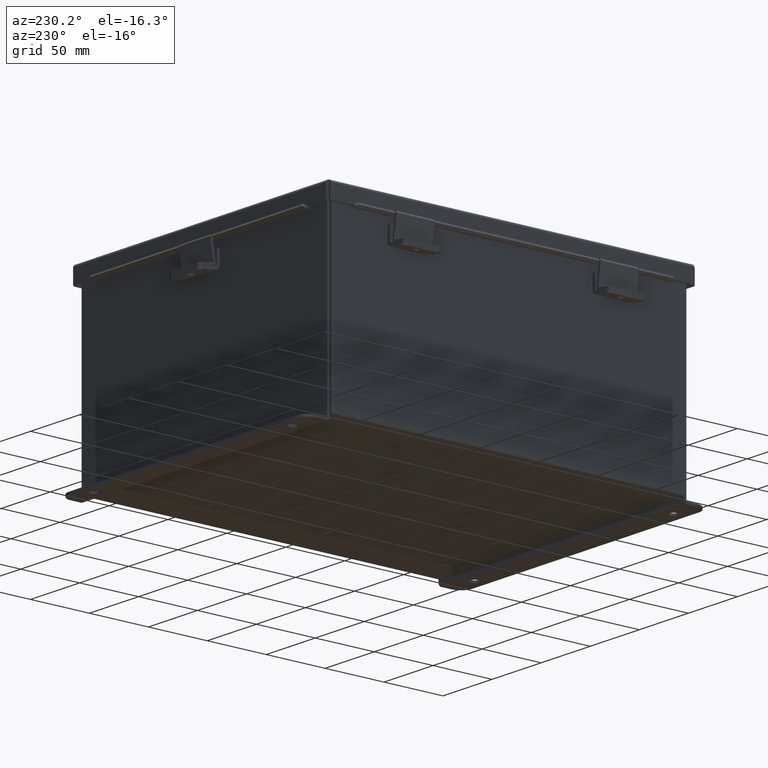
[diagram: clean part render]
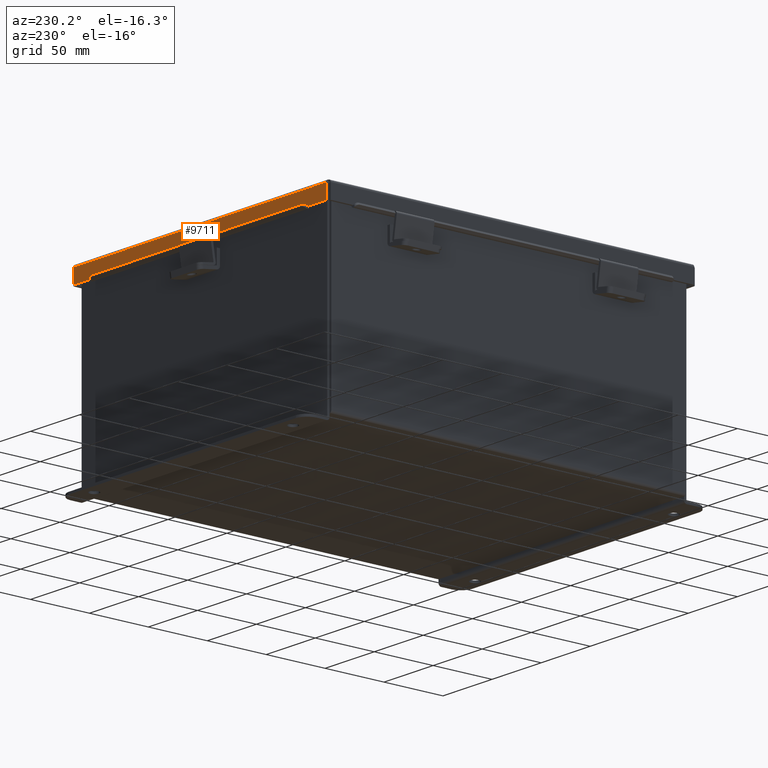
[diagram: same view with one face highlighted and labeled with its STEP entity id]
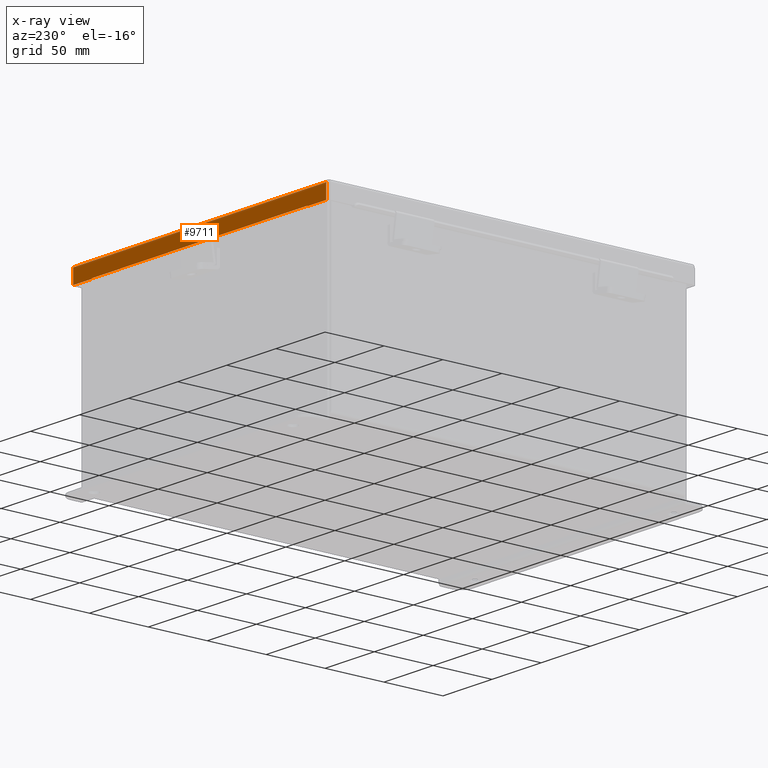
[diagram: x-ray of the same camera — body ghosted, the highlighted face saturated]
A machine part, auxiliary view. The second image highlights one B-rep face of the part: STEP entity #9711.
The next image is the same camera in x-ray: the body ghosted, the highlighted face saturated — about 0% of this face is hidden behind the body in this view.
In plain terms, the highlighted planar face has unit normal (-0, -1, -0).
Its self-contained STEP definition (entity closure, byte-faithful):
#33 = CARTESIAN_POINT ( 'NONE',  ( -5.074478932188153400, 6.156250000000012400, 0.4873000000000000100 ) ) ;
#234 = VERTEX_POINT ( 'NONE', #33 ) ;
#261 = CARTESIAN_POINT ( 'NONE',  ( -4.324478932188153400, 6.156250000000012400, 0.4717115427318810900 ) ) ;
#574 = CARTESIAN_POINT ( 'NONE',  ( 5.074478932188154300, 6.156250000000009800, 0.0000000000000000000 ) ) ;
#607 = CARTESIAN_POINT ( 'NONE',  ( -4.324478932188152500, 6.156250000000012400, 0.4873000000000011200 ) ) ;
#609 = CARTESIAN_POINT ( 'NONE',  ( 4.324478932188154300, 6.156250000000012400, 0.4717115427318799800 ) ) ;
#722 = LINE ( 'NONE', #3382, #8221 ) ;
#759 = CARTESIAN_POINT ( 'NONE',  ( 1.600692183787654200E-017, 6.156250000000009800, -2.731847993664263300E-014 ) ) ;
#769 = DIRECTION ( 'NONE',  ( 1.000000000000000000, 3.215113961076991900E-030, 6.622661802822073100E-018 ) ) ;
#901 = CARTESIAN_POINT ( 'NONE',  ( -5.074478932188151600, 6.156250000000009800, -2.731847993664263300E-014 ) ) ;
#1190 = CARTESIAN_POINT ( 'NONE',  ( 5.074478932188154300, 6.156250000000012400, 0.4873000000000000100 ) ) ;
#1329 = DIRECTION ( 'NONE',  ( -0.0000000000000000000, 4.484872552701440100E-015, 1.000000000000000000 ) ) ;
#1776 = ORIENTED_EDGE ( 'NONE', *, *, #5600, .T. ) ;
#2069 = ORIENTED_EDGE ( 'NONE', *, *, #4729, .F. ) ;
#2487 = DIRECTION ( 'NONE',  ( 1.000000000000000000, 3.191323508412550700E-030, -0.0000000000000000000 ) ) ;
#2554 = CARTESIAN_POINT ( 'NONE',  ( 5.156250000000018700, 6.156250000000009800, 0.01299999999999901400 ) ) ;
#2754 = CARTESIAN_POINT ( 'NONE',  ( 1.280553747030123400E-017, 6.156250000000012400, 0.4873000000000000100 ) ) ;
#2811 = VECTOR ( 'NONE', #1329, 39.37007874015748100 ) ;
#2850 = LINE ( 'NONE', #609, #2944 ) ;
#2944 = VECTOR ( 'NONE', #9631, 39.37007874015748100 ) ;
#2982 = VECTOR ( 'NONE', #2487, 39.37007874015748100 ) ;
#3025 = DIRECTION ( 'NONE',  ( -3.192065271101567100E-030, -1.000000000000000000, 4.484872552701440100E-015 ) ) ;
#3039 = CARTESIAN_POINT ( 'NONE',  ( 1.280553747030123400E-017, 6.156250000000012400, 0.4873000000000000100 ) ) ;
#3107 = CARTESIAN_POINT ( 'NONE',  ( -5.074478932188153400, 6.156250000000009800, 0.01300000000000010700 ) ) ;
#3130 = ORIENTED_EDGE ( 'NONE', *, *, #6408, .F. ) ;
#3274 = VECTOR ( 'NONE', #6219, 39.37007874015748100 ) ;
#3382 = CARTESIAN_POINT ( 'NONE',  ( 4.324478932188154300, 6.156250000000012400, 0.4873000000000000100 ) ) ;
#3518 = CARTESIAN_POINT ( 'NONE',  ( 4.324478932188154300, 6.156250000000012400, 0.4717115427318799800 ) ) ;
#3569 = ORIENTED_EDGE ( 'NONE', *, *, #7669, .F. ) ;
#3812 = VERTEX_POINT ( 'NONE', #607 ) ;
#3889 = VECTOR ( 'NONE', #6981, 39.37007874015748100 ) ;
#4050 = FACE_OUTER_BOUND ( 'NONE', #9138, .T. ) ;
#4397 = CARTESIAN_POINT ( 'NONE',  ( 5.074478932188153400, 6.156250000000009800, 0.01300000000000010700 ) ) ;
#4423 = EDGE_CURVE ( 'NONE', #234, #3812, #9189, .T. ) ;
#4729 = EDGE_CURVE ( 'NONE', #8898, #4837, #2850, .T. ) ;
#4837 = VERTEX_POINT ( 'NONE', #261 ) ;
#5009 = LINE ( 'NONE', #574, #2811 ) ;
#5296 = EDGE_CURVE ( 'NONE', #8470, #5793, #7257, .T. ) ;
#5600 = EDGE_CURVE ( 'NONE', #8470, #234, #8229, .T. ) ;
#5793 = VERTEX_POINT ( 'NONE', #4397 ) ;
#5881 = CARTESIAN_POINT ( 'NONE',  ( -4.324478932188153400, 6.156250000000012400, 0.4717115427318810900 ) ) ;
#6219 = DIRECTION ( 'NONE',  ( 0.0000000000000000000, 1.846427556282924300E-029, 1.000000000000000000 ) ) ;
#6408 = EDGE_CURVE ( 'NONE', #9281, #8898, #722, .T. ) ;
#6620 = ORIENTED_EDGE ( 'NONE', *, *, #4423, .T. ) ;
#6805 = CARTESIAN_POINT ( 'NONE',  ( 4.324478932188154300, 6.156250000000012400, 0.4873000000000000100 ) ) ;
#6981 = DIRECTION ( 'NONE',  ( 1.000000000000000000, 3.215113961076991900E-030, 6.622661802822073100E-018 ) ) ;
#7060 = EDGE_CURVE ( 'NONE', #4837, #3812, #9270, .T. ) ;
#7100 = LINE ( 'NONE', #3039, #8903 ) ;
#7257 = LINE ( 'NONE', #2554, #2982 ) ;
#7501 = PLANE ( 'NONE',  #9458 ) ;
#7545 = VERTEX_POINT ( 'NONE', #1190 ) ;
#7653 = VECTOR ( 'NONE', #9488, 39.37007874015748100 ) ;
#7669 = EDGE_CURVE ( 'NONE', #5793, #7545, #5009, .T. ) ;
#7673 = ORIENTED_EDGE ( 'NONE', *, *, #9165, .T. ) ;
#8131 = ORIENTED_EDGE ( 'NONE', *, *, #5296, .F. ) ;
#8221 = VECTOR ( 'NONE', #9092, 39.37007874015748100 ) ;
#8229 = LINE ( 'NONE', #901, #7653 ) ;
#8259 = DIRECTION ( 'NONE',  ( 0.0000000000000000000, -4.484872552701440100E-015, -1.000000000000000000 ) ) ;
#8470 = VERTEX_POINT ( 'NONE', #3107 ) ;
#8653 = ORIENTED_EDGE ( 'NONE', *, *, #7060, .F. ) ;
#8898 = VERTEX_POINT ( 'NONE', #3518 ) ;
#8903 = VECTOR ( 'NONE', #769, 39.37007874015748100 ) ;
#9092 = DIRECTION ( 'NONE',  ( 0.0000000000000000000, -1.846427556282924300E-029, -1.000000000000000000 ) ) ;
#9138 = EDGE_LOOP ( 'NONE', ( #3130, #7673, #3569, #8131, #1776, #6620, #8653, #2069 ) ) ;
#9165 = EDGE_CURVE ( 'NONE', #9281, #7545, #7100, .T. ) ;
#9189 = LINE ( 'NONE', #2754, #3889 ) ;
#9270 = LINE ( 'NONE', #5881, #3274 ) ;
#9281 = VERTEX_POINT ( 'NONE', #6805 ) ;
#9458 = AXIS2_PLACEMENT_3D ( 'NONE', #759, #3025, #8259 ) ;
#9488 = DIRECTION ( 'NONE',  ( 0.0000000000000000000, 4.484872552701440100E-015, 1.000000000000000000 ) ) ;
#9631 = DIRECTION ( 'NONE',  ( -1.000000000000000000, -3.215975411700707400E-030, -0.0000000000000000000 ) ) ;
#9711 = ADVANCED_FACE ( 'NONE', ( #4050 ), #7501, .F. ) ;